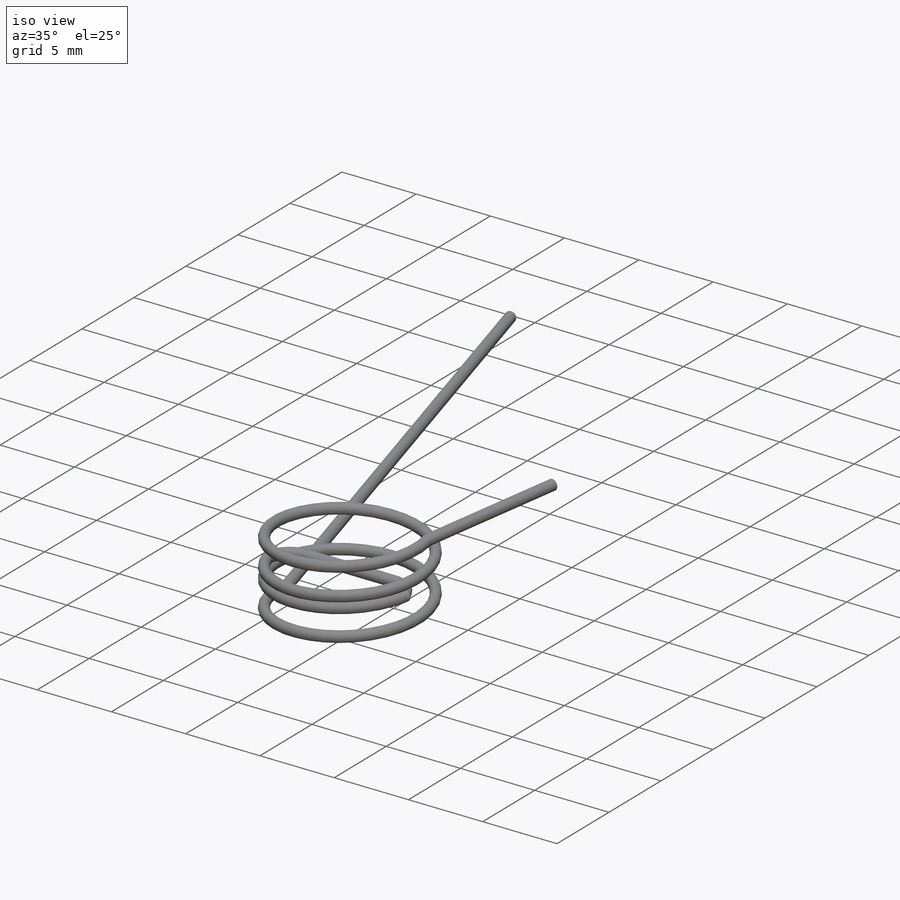
[diagram: iso view]
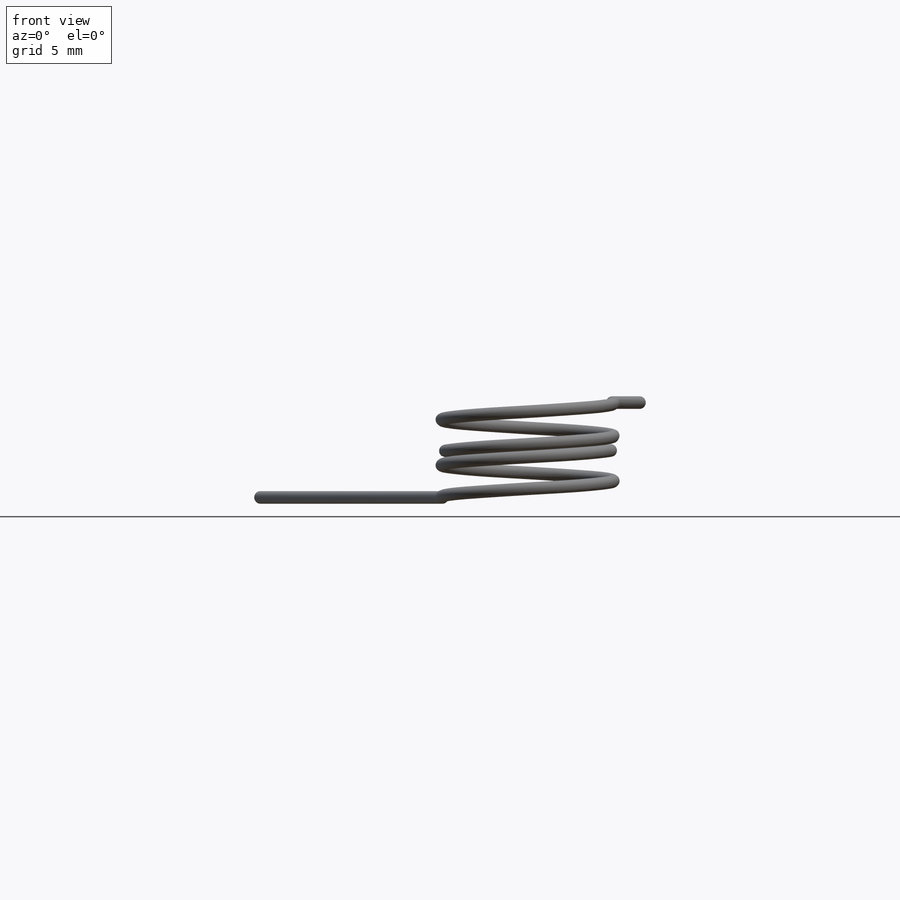
[diagram: front view]
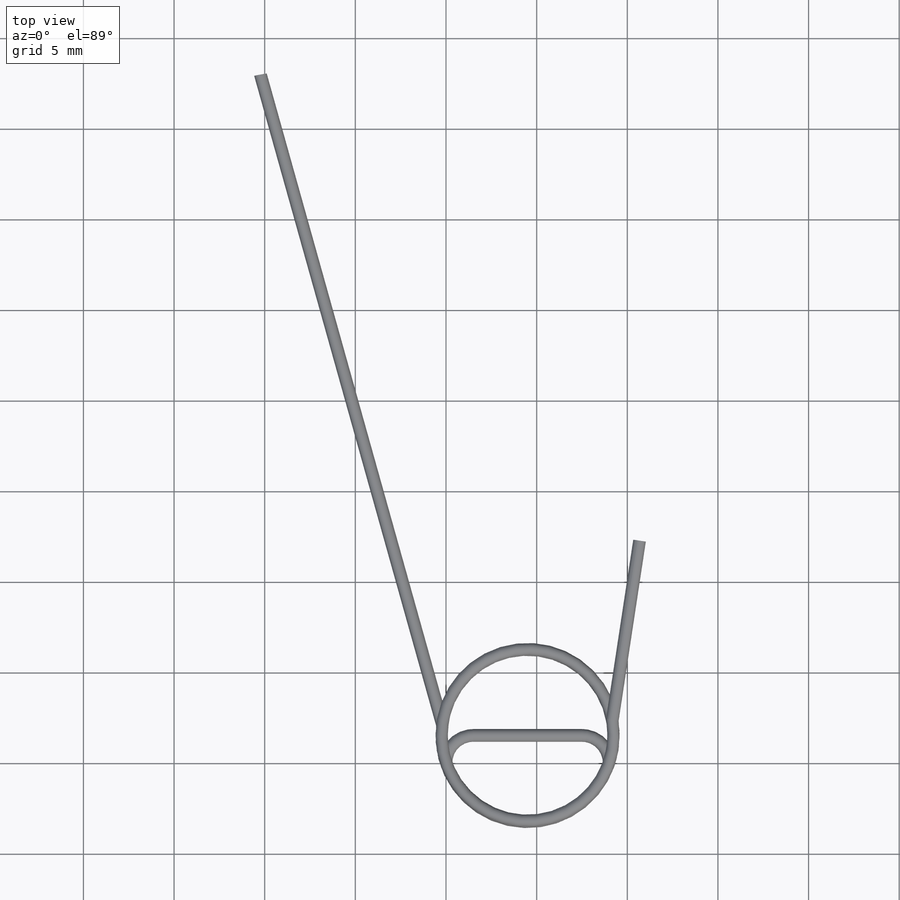
[diagram: top view]
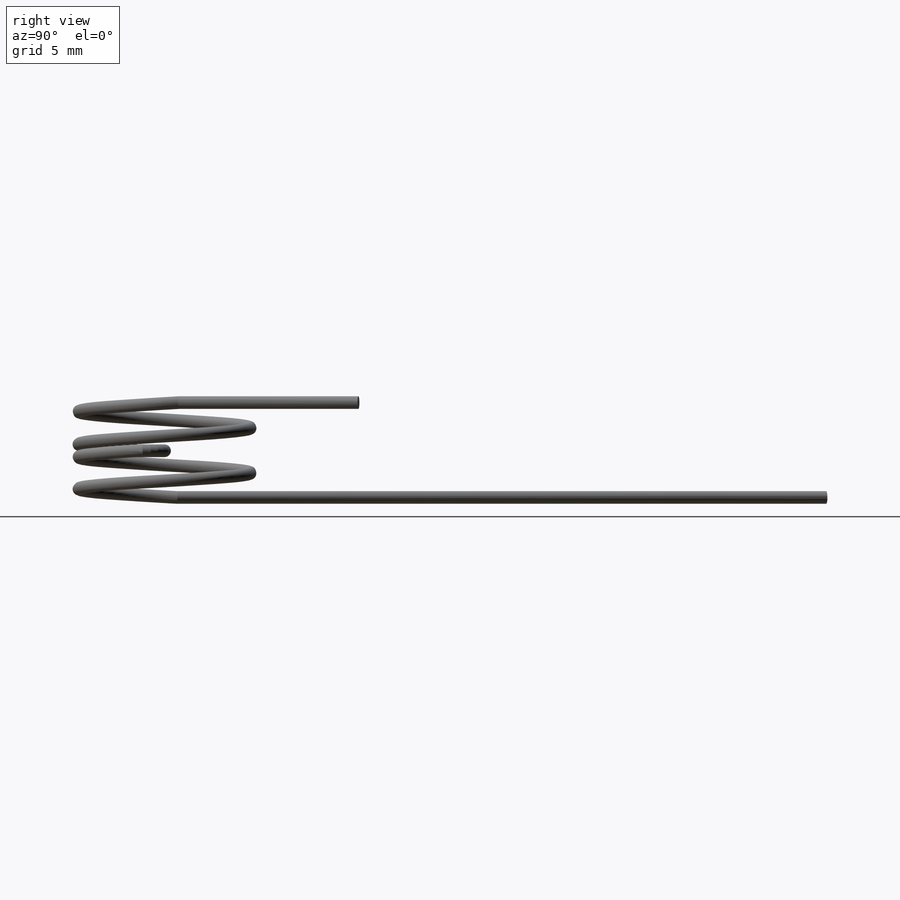
[diagram: right view]
SOLIDWORKS PART (.sldprt)
format: sldprt  version: not decoded by parser v0  size: 988,672 bytes
history: native  units: mm
features: sketch x9, sweep x4, helix x2, material x1, plane x1, extrude x1 (+15 scaffold rows collapsed)
feature tree (33):
  scaffold x15  (default folders/planes/origin — collapsed)
  material  "Material <not specified>"
  sketch  "Sketch1"  dims[D1=0.7mm]
  sketch  "Sketch2"  dims[c1.D2=3.0mm c1.D1=1.5mm c2.D2=1.5mm c2.D1=6.0mm c2.D3=6.0mm c2.D4=~2.490396mm c3.D4=90.0deg]
  sweep  "Sweep1"
  sketch  "Sketch5"  dims[D1=0.35mm]
  helix  "Helix/Spiral1"  Pitch=2.664mm
  sweep  "Sweep2"
  sketch  "Sketch1<2>"
  sketch  "Sketch7"
  helix  "Helix/Spiral3"  Pitch=2.59mm
  sketch  "Sketch8"  dims[D1=0.0mm]
  sweep  "Sweep3"
  plane  "Plane1"
  sketch  "Sketch9"
  sketch  "Sketch10"  dims[D1=0.0mm]
  sweep  "Sweep4"
  sketch  "Sketch11"  dims[D1=0.0mm]
  extrude  "Extrude1"  Depth=10mm
decode coverage: 9 of 16 modeling features carry decoded parameters
note: ~ marks probable driven/reference dimensions
summary: profile_refs inferred from adjacent sketches, not decoded
note: suppression state not decoded; provenance and decode notes live in map.json
